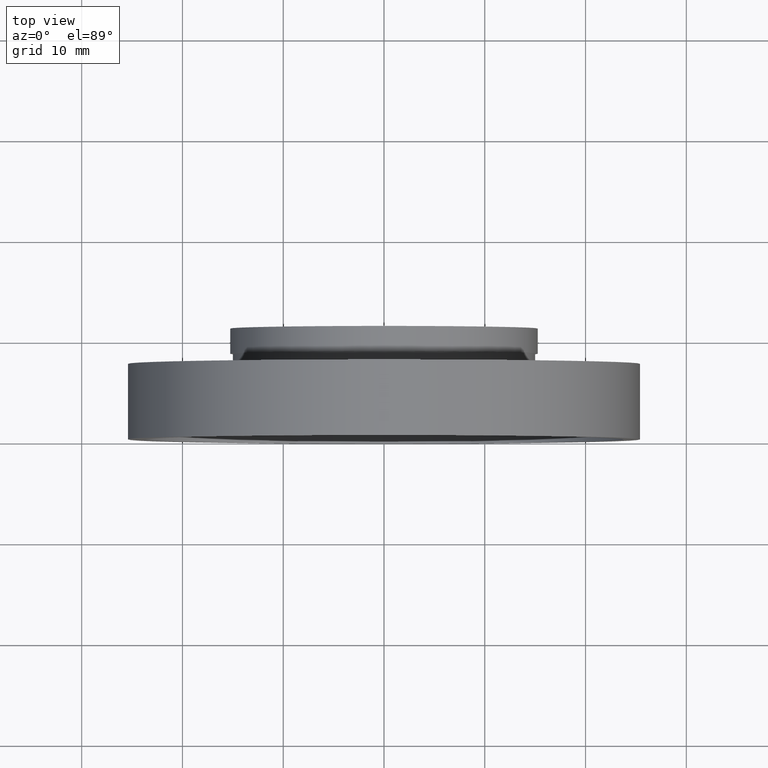
[diagram: clean part render]
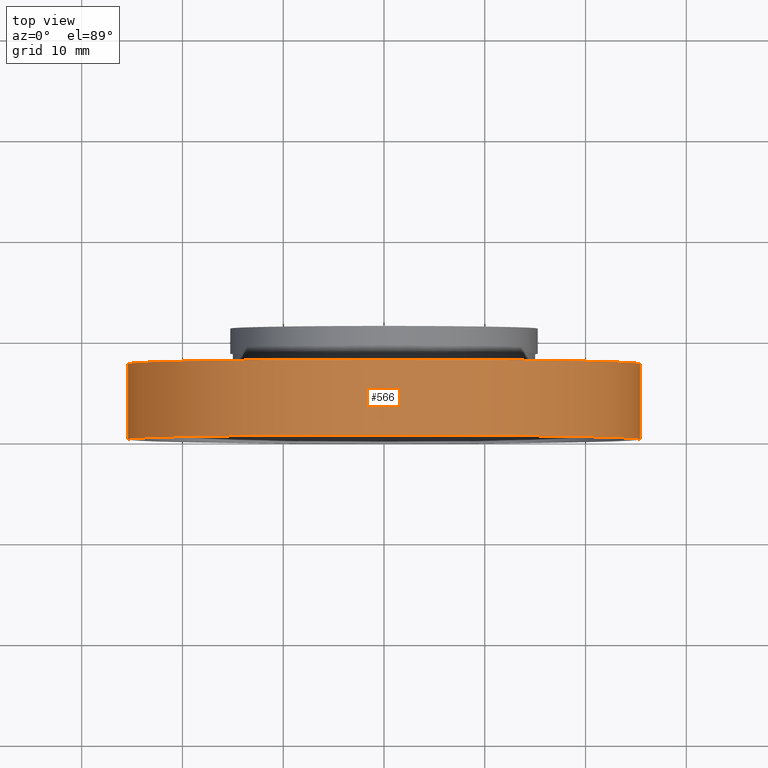
[diagram: same view with one face highlighted and labeled with its STEP entity id]
A machine part, top view. The second image highlights one B-rep face of the part: STEP entity #566.
In plain terms, the highlighted cylindrical surface (partial cylindrical patch) has radius 25.4 mm, axis along (-0, 1, -0).
Its self-contained STEP definition (entity closure, byte-faithful):
#4 = CARTESIAN_POINT ( 'NONE',  ( -25.39999999999999100, -6.580049821787884700E-015, 0.0000000000000000000 ) ) ;
#5 = VERTEX_POINT ( 'NONE', #575 ) ;
#12 = DIRECTION ( 'NONE',  ( -1.000000000000000000, -1.224646799147351000E-016, 0.0000000000000000000 ) ) ;
#14 = DIRECTION ( 'NONE',  ( -1.224646799147351000E-016, 1.000000000000000000, -0.0000000000000000000 ) ) ;
#39 = VERTEX_POINT ( 'NONE', #459 ) ;
#70 = CARTESIAN_POINT ( 'NONE',  ( 25.39999999999999900, 16.88601823708208000, 3.110602869834276900E-015 ) ) ;
#80 = ORIENTED_EDGE ( 'NONE', *, *, #279, .F. ) ;
#97 = AXIS2_PLACEMENT_3D ( 'NONE', #453, #586, #12 ) ;
#120 = LINE ( 'NONE', #70, #614 ) ;
#134 = ORIENTED_EDGE ( 'NONE', *, *, #499, .T. ) ;
#160 = CARTESIAN_POINT ( 'NONE',  ( 0.0000000000000000000, 16.88601823708207700, 0.0000000000000000000 ) ) ;
#162 = CARTESIAN_POINT ( 'NONE',  ( 25.39999999999999900, 7.500000000000000000, 3.110602869834276900E-015 ) ) ;
#180 = VECTOR ( 'NONE', #585, 1000.000000000000000 ) ;
#252 = EDGE_CURVE ( 'NONE', #5, #491, #374, .T. ) ;
#268 = AXIS2_PLACEMENT_3D ( 'NONE', #160, #445, #540 ) ;
#274 = VERTEX_POINT ( 'NONE', #4 ) ;
#279 = EDGE_CURVE ( 'NONE', #274, #5, #592, .T. ) ;
#294 = EDGE_CURVE ( 'NONE', #274, #39, #342, .T. ) ;
#325 = CYLINDRICAL_SURFACE ( 'NONE', #268, 25.39999999999999900 ) ;
#342 = CIRCLE ( 'NONE', #97, 25.39999999999999500 ) ;
#374 = CIRCLE ( 'NONE', #563, 25.39999999999999900 ) ;
#395 = CARTESIAN_POINT ( 'NONE',  ( 1.149455719078123100E-015, 7.499999999999996400, 0.0000000000000000000 ) ) ;
#406 = DIRECTION ( 'NONE',  ( -1.000000000000000000, -1.365923996832131600E-016, 0.0000000000000000000 ) ) ;
#445 = DIRECTION ( 'NONE',  ( -1.224646799147351000E-016, 1.000000000000000000, -0.0000000000000000000 ) ) ;
#453 = CARTESIAN_POINT ( 'NONE',  ( 2.067940818438636500E-015, -3.469446951953614200E-015, 0.0000000000000000000 ) ) ;
#459 = CARTESIAN_POINT ( 'NONE',  ( 25.39999999999999900, -3.588440821193433400E-016, 3.110602869834276900E-015 ) ) ;
#477 = EDGE_LOOP ( 'NONE', ( #502, #134, #553, #80 ) ) ;
#487 = DIRECTION ( 'NONE',  ( -1.224646799147351000E-016, 1.000000000000000000, -0.0000000000000000000 ) ) ;
#491 = VERTEX_POINT ( 'NONE', #162 ) ;
#499 = EDGE_CURVE ( 'NONE', #39, #491, #120, .T. ) ;
#502 = ORIENTED_EDGE ( 'NONE', *, *, #294, .T. ) ;
#540 = DIRECTION ( 'NONE',  ( -1.000000000000000000, -1.365923996832131600E-016, 0.0000000000000000000 ) ) ;
#553 = ORIENTED_EDGE ( 'NONE', *, *, #252, .F. ) ;
#563 = AXIS2_PLACEMENT_3D ( 'NONE', #395, #487, #406 ) ;
#566 = ADVANCED_FACE ( 'NONE', ( #569 ), #325, .T. ) ;
#569 = FACE_OUTER_BOUND ( 'NONE', #477, .T. ) ;
#575 = CARTESIAN_POINT ( 'NONE',  ( -25.39999999999999900, 7.499999999999992900, 0.0000000000000000000 ) ) ;
#583 = CARTESIAN_POINT ( 'NONE',  ( -25.39999999999999900, 16.88601823708207300, 0.0000000000000000000 ) ) ;
#585 = DIRECTION ( 'NONE',  ( -1.224646799147351000E-016, 1.000000000000000000, -0.0000000000000000000 ) ) ;
#586 = DIRECTION ( 'NONE',  ( -1.224646799147351000E-016, 1.000000000000000000, -0.0000000000000000000 ) ) ;
#592 = LINE ( 'NONE', #583, #180 ) ;
#614 = VECTOR ( 'NONE', #14, 1000.000000000000000 ) ;